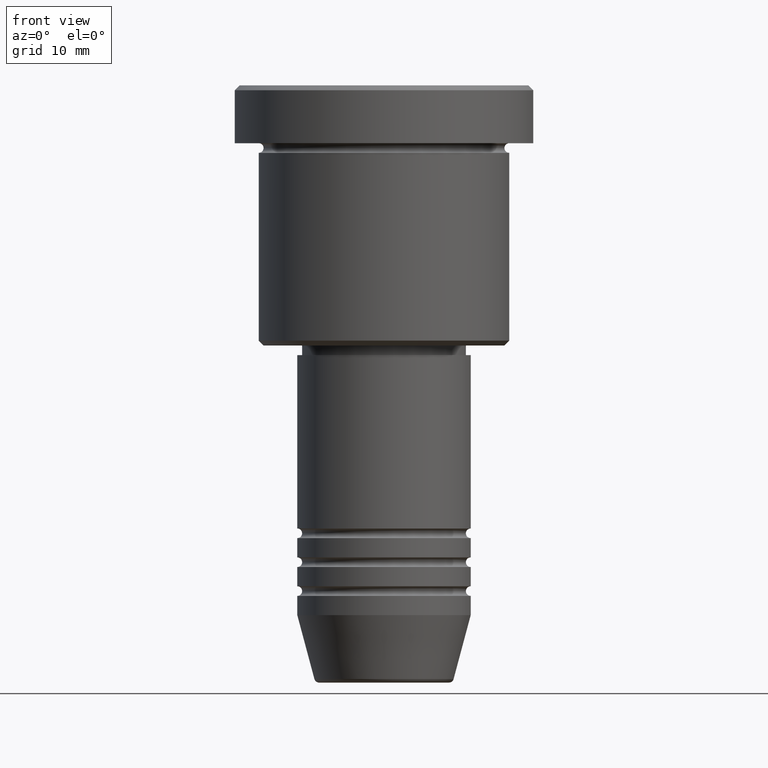
[diagram: clean part render]
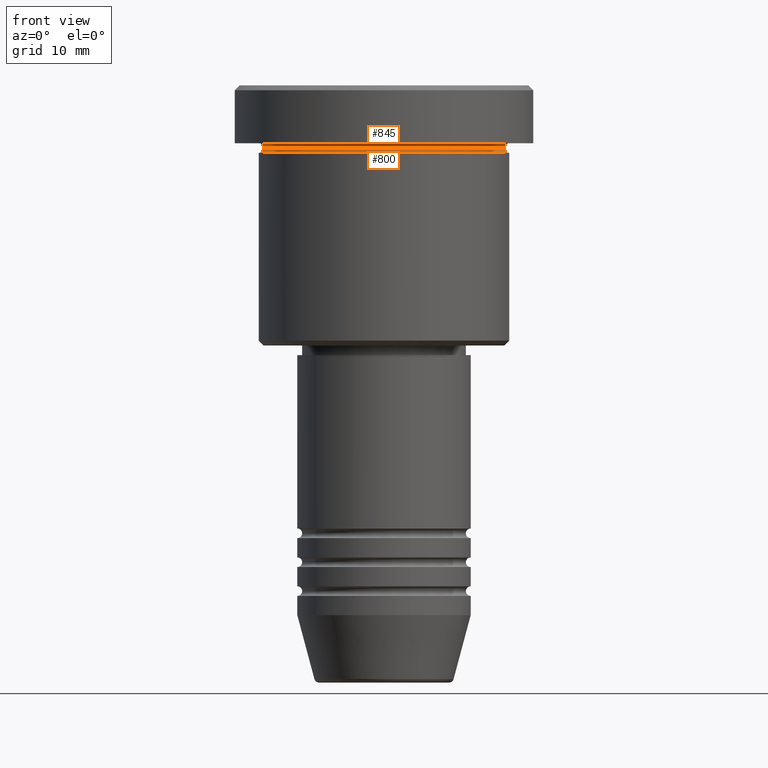
[diagram: same view with one multi-face feature highlighted, each face labeled with its STEP entity id]
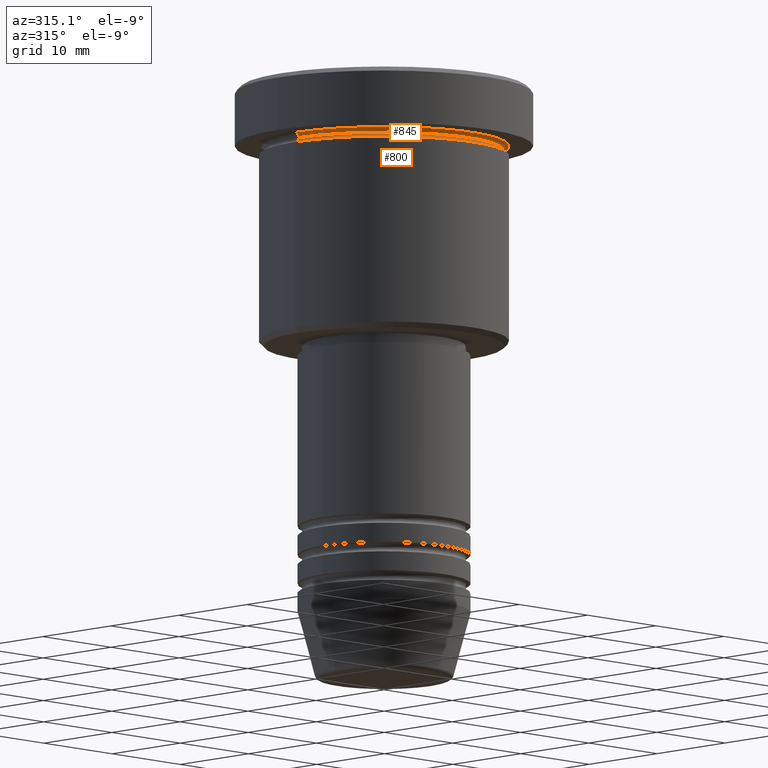
[diagram: same view with one multi-face feature highlighted, each face labeled with its STEP entity id]
A machine part, front view. The highlighted faces form ONE feature: a constant-radius fillet chain: 2 tangent blend faces with common blend radius 0.5 mm. The faces share edges in the B-rep.
A second angle (auxiliary view) of the same feature is appended — it is thin or edge-on in the first view.
Their STEP definitions:
[1] entity #845 (Torus):
#19 = AXIS2_PLACEMENT_3D ( 'NONE', #257, #186, #548 ) ;
#110 = CARTESIAN_POINT ( 'NONE',  ( 13.00000000000000000, 1.592040838891559095E-15, -5.999999999999994671 ) ) ;
#186 = DIRECTION ( 'NONE',  ( 0.000000000000000000, 0.000000000000000000, -1.000000000000000000 ) ) ;
#193 = TOROIDAL_SURFACE ( 'NONE', #19, 13.00000000000000000, 0.5000000000000000000 ) ;
#248 = VERTEX_POINT ( 'NONE', #402 ) ;
#257 = CARTESIAN_POINT ( 'NONE',  ( 0.000000000000000000, 0.000000000000000000, -6.499999999999995559 ) ) ;
#332 = CARTESIAN_POINT ( 'NONE',  ( 0.000000000000000000, 0.000000000000000000, -6.499999999999995559 ) ) ;
#382 = CARTESIAN_POINT ( 'NONE',  ( 12.49999999999999822, 0.000000000000000000, -6.499999999999995559 ) ) ;
#402 = CARTESIAN_POINT ( 'NONE',  ( -13.00000000000000000, 0.000000000000000000, -5.999999999999994671 ) ) ;
#479 = ORIENTED_EDGE ( 'NONE', *, *, #895, .T. ) ;
#482 = CIRCLE ( 'NONE', #1087, 12.49999999999999822 ) ;
#485 = DIRECTION ( 'NONE',  ( -1.000000000000000000, -1.224646799147353454E-16, 0.000000000000000000 ) ) ;
#502 = DIRECTION ( 'NONE',  ( 1.000000000000000000, 0.000000000000000000, 0.000000000000000000 ) ) ;
#523 = ORIENTED_EDGE ( 'NONE', *, *, #877, .F. ) ;
#548 = DIRECTION ( 'NONE',  ( -1.000000000000000000, 0.000000000000000000, 0.000000000000000000 ) ) ;
#580 = VERTEX_POINT ( 'NONE', #382 ) ;
#603 = CARTESIAN_POINT ( 'NONE',  ( 0.000000000000000000, 0.000000000000000000, -5.999999999999995559 ) ) ;
#615 = ORIENTED_EDGE ( 'NONE', *, *, #741, .T. ) ;
#653 = DIRECTION ( 'NONE',  ( -1.224646799147353207E-16, 1.000000000000000000, 0.000000000000000000 ) ) ;
#658 = CARTESIAN_POINT ( 'NONE',  ( -13.00000000000000000, 0.000000000000000000, -6.499999999999995559 ) ) ;
#666 = CIRCLE ( 'NONE', #809, 13.00000000000000000 ) ;
#669 = EDGE_LOOP ( 'NONE', ( #615, #479, #1050, #523 ) ) ;
#691 = DIRECTION ( 'NONE',  ( -0.000000000000000000, -0.000000000000000000, 1.000000000000000000 ) ) ;
#715 = VERTEX_POINT ( 'NONE', #937 ) ;
#733 = AXIS2_PLACEMENT_3D ( 'NONE', #658, #926, #917 ) ;
#741 = EDGE_CURVE ( 'NONE', #715, #580, #482, .T. ) ;
#786 = AXIS2_PLACEMENT_3D ( 'NONE', #836, #653, #485 ) ;
#809 = AXIS2_PLACEMENT_3D ( 'NONE', #603, #1153, #1126 ) ;
#836 = CARTESIAN_POINT ( 'NONE',  ( 13.00000000000000000, 1.592040838891559095E-15, -6.499999999999995559 ) ) ;
#845 = ADVANCED_FACE ( 'NONE', ( #1163 ), #193, .F. ) ;
#877 = EDGE_CURVE ( 'NONE', #715, #248, #1177, .T. ) ;
#893 = VERTEX_POINT ( 'NONE', #110 ) ;
#895 = EDGE_CURVE ( 'NONE', #580, #893, #1000, .T. ) ;
#917 = DIRECTION ( 'NONE',  ( 0.000000000000000000, 0.000000000000000000, -1.000000000000000000 ) ) ;
#926 = DIRECTION ( 'NONE',  ( -0.000000000000000000, -1.000000000000000000, -0.000000000000000000 ) ) ;
#937 = CARTESIAN_POINT ( 'NONE',  ( -12.49999999999999822, 1.561424668912875308E-15, -6.499999999999995559 ) ) ;
#1000 = CIRCLE ( 'NONE', #786, 0.5000000000000004441 ) ;
#1024 = EDGE_CURVE ( 'NONE', #248, #893, #666, .T. ) ;
#1050 = ORIENTED_EDGE ( 'NONE', *, *, #1024, .F. ) ;
#1087 = AXIS2_PLACEMENT_3D ( 'NONE', #332, #691, #502 ) ;
#1126 = DIRECTION ( 'NONE',  ( -1.000000000000000000, 0.000000000000000000, 0.000000000000000000 ) ) ;
#1153 = DIRECTION ( 'NONE',  ( -0.000000000000000000, -0.000000000000000000, 1.000000000000000000 ) ) ;
#1163 = FACE_OUTER_BOUND ( 'NONE', #669, .T. ) ;
#1177 = CIRCLE ( 'NONE', #733, 0.5000000000000004441 ) ;
[2] entity #800 (Torus):
#35 = EDGE_CURVE ( 'NONE', #580, #187, #567, .T. ) ;
#45 = DIRECTION ( 'NONE',  ( 1.224646799147353207E-16, 1.000000000000000000, 0.000000000000000000 ) ) ;
#76 = CIRCLE ( 'NONE', #226, 13.00000000000000000 ) ;
#170 = ORIENTED_EDGE ( 'NONE', *, *, #35, .F. ) ;
#171 = DIRECTION ( 'NONE',  ( 0.000000000000000000, 0.000000000000000000, -1.000000000000000000 ) ) ;
#187 = VERTEX_POINT ( 'NONE', #826 ) ;
#226 = AXIS2_PLACEMENT_3D ( 'NONE', #816, #1032, #577 ) ;
#227 = TOROIDAL_SURFACE ( 'NONE', #1071, 13.00000000000000000, 0.5000000000000000000 ) ;
#301 = AXIS2_PLACEMENT_3D ( 'NONE', #604, #879, #171 ) ;
#318 = DIRECTION ( 'NONE',  ( -1.000000000000000000, 1.224646799147353454E-16, 0.000000000000000000 ) ) ;
#332 = CARTESIAN_POINT ( 'NONE',  ( 0.000000000000000000, 0.000000000000000000, -6.499999999999995559 ) ) ;
#361 = FACE_OUTER_BOUND ( 'NONE', #756, .T. ) ;
#382 = CARTESIAN_POINT ( 'NONE',  ( 12.49999999999999822, 0.000000000000000000, -6.499999999999995559 ) ) ;
#389 = CIRCLE ( 'NONE', #1181, 0.5000000000000004441 ) ;
#482 = CIRCLE ( 'NONE', #1087, 12.49999999999999822 ) ;
#502 = DIRECTION ( 'NONE',  ( 1.000000000000000000, 0.000000000000000000, 0.000000000000000000 ) ) ;
#533 = ORIENTED_EDGE ( 'NONE', *, *, #564, .T. ) ;
#564 = EDGE_CURVE ( 'NONE', #570, #187, #76, .T. ) ;
#567 = CIRCLE ( 'NONE', #301, 0.5000000000000004441 ) ;
#570 = VERTEX_POINT ( 'NONE', #823 ) ;
#577 = DIRECTION ( 'NONE',  ( 1.000000000000000000, 0.000000000000000000, 0.000000000000000000 ) ) ;
#580 = VERTEX_POINT ( 'NONE', #382 ) ;
#604 = CARTESIAN_POINT ( 'NONE',  ( 13.00000000000000000, 0.000000000000000000, -6.499999999999995559 ) ) ;
#630 = DIRECTION ( 'NONE',  ( 1.000000000000000000, 0.000000000000000000, 0.000000000000000000 ) ) ;
#672 = CARTESIAN_POINT ( 'NONE',  ( -13.00000000000000000, 1.592040838891559095E-15, -6.499999999999995559 ) ) ;
#691 = DIRECTION ( 'NONE',  ( -0.000000000000000000, -0.000000000000000000, 1.000000000000000000 ) ) ;
#712 = DIRECTION ( 'NONE',  ( -0.000000000000000000, -0.000000000000000000, 1.000000000000000000 ) ) ;
#715 = VERTEX_POINT ( 'NONE', #937 ) ;
#741 = EDGE_CURVE ( 'NONE', #715, #580, #482, .T. ) ;
#756 = EDGE_LOOP ( 'NONE', ( #797, #1172, #533, #170 ) ) ;
#797 = ORIENTED_EDGE ( 'NONE', *, *, #741, .F. ) ;
#800 = ADVANCED_FACE ( 'NONE', ( #361 ), #227, .F. ) ;
#816 = CARTESIAN_POINT ( 'NONE',  ( 0.000000000000000000, 0.000000000000000000, -6.999999999999995559 ) ) ;
#823 = CARTESIAN_POINT ( 'NONE',  ( -13.00000000000000000, 1.592040838891559095E-15, -6.999999999999995559 ) ) ;
#826 = CARTESIAN_POINT ( 'NONE',  ( 13.00000000000000000, 0.000000000000000000, -6.999999999999995559 ) ) ;
#879 = DIRECTION ( 'NONE',  ( 0.000000000000000000, -1.000000000000000000, 0.000000000000000000 ) ) ;
#937 = CARTESIAN_POINT ( 'NONE',  ( -12.49999999999999822, 1.561424668912875308E-15, -6.499999999999995559 ) ) ;
#971 = CARTESIAN_POINT ( 'NONE',  ( 0.000000000000000000, 0.000000000000000000, -6.499999999999995559 ) ) ;
#1032 = DIRECTION ( 'NONE',  ( -0.000000000000000000, -0.000000000000000000, 1.000000000000000000 ) ) ;
#1071 = AXIS2_PLACEMENT_3D ( 'NONE', #971, #712, #630 ) ;
#1087 = AXIS2_PLACEMENT_3D ( 'NONE', #332, #691, #502 ) ;
#1121 = EDGE_CURVE ( 'NONE', #715, #570, #389, .T. ) ;
#1172 = ORIENTED_EDGE ( 'NONE', *, *, #1121, .T. ) ;
#1181 = AXIS2_PLACEMENT_3D ( 'NONE', #672, #45, #318 ) ;